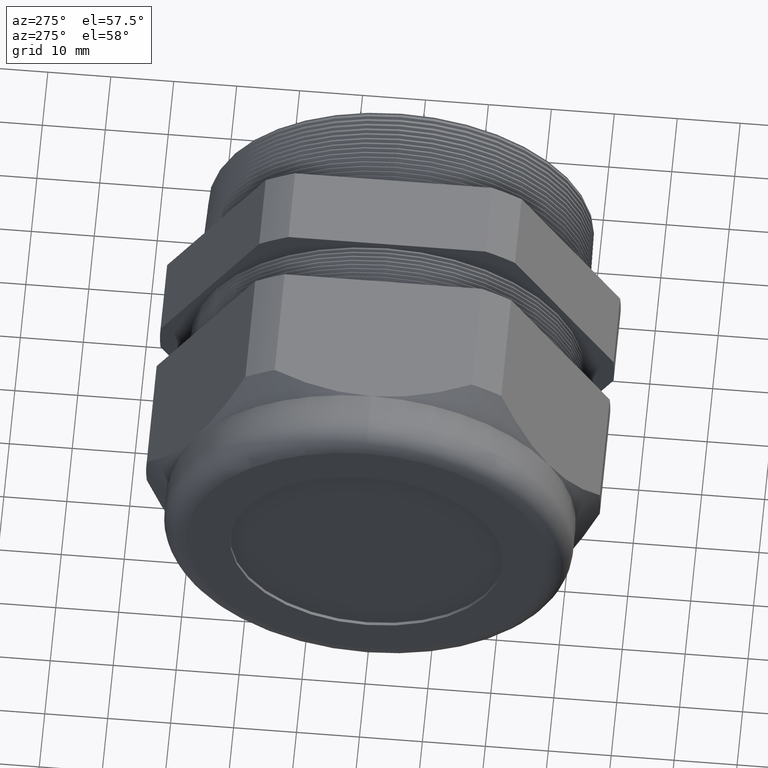
[diagram: clean part render]
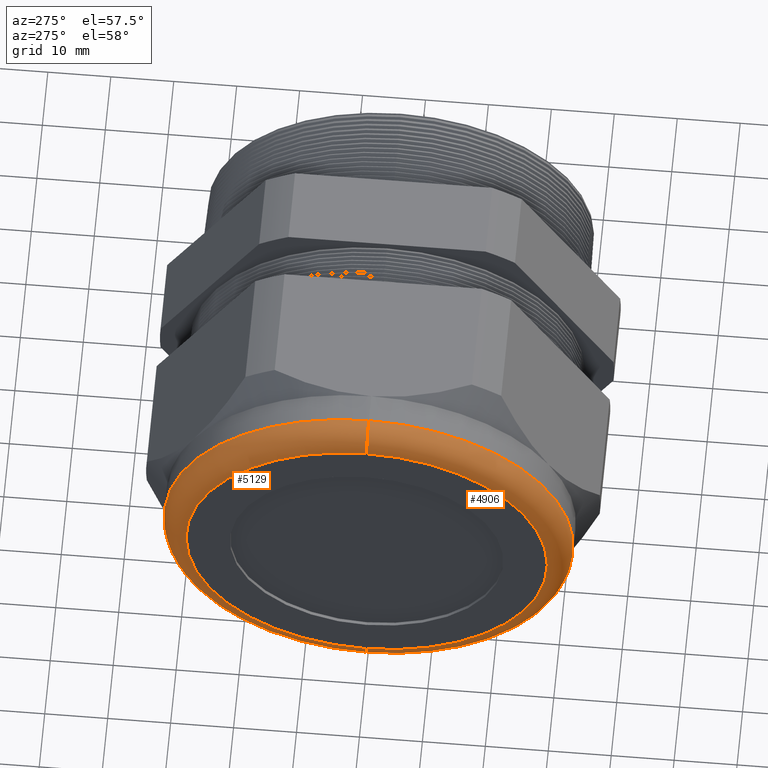
[diagram: same view with one multi-face feature highlighted, each face labeled with its STEP entity id]
A machine part, auxiliary view. The highlighted faces form ONE feature: a constant-radius fillet chain: 2 tangent blend faces with common blend radius 3.81 mm. The faces share edges in the B-rep.
Their STEP definitions:
[1] entity #4906 (Torus):
#95 = EDGE_CURVE ( 'NONE', #5113, #5101, #569, .T. ) ;
#565 = DIRECTION ( 'NONE',  ( 0.0000000000000000000, 0.0000000000000000000, 1.000000000000000000 ) ) ;
#566 = DIRECTION ( 'NONE',  ( -1.000000000000000000, 0.0000000000000000000, 0.0000000000000000000 ) ) ;
#567 = CARTESIAN_POINT ( 'NONE',  ( -2.239999999999999800, 0.0000000000000000000, 0.0000000000000000000 ) ) ;
#568 = AXIS2_PLACEMENT_3D ( 'NONE', #567, #566, #565 ) ;
#569 = CIRCLE ( 'NONE', #568, 1.129999999999999900 ) ;
#2875 = DIRECTION ( 'NONE',  ( 0.0000000000000000000, 0.0000000000000000000, 1.000000000000000000 ) ) ;
#2876 = DIRECTION ( 'NONE',  ( 1.000000000000000000, 0.0000000000000000000, 0.0000000000000000000 ) ) ;
#2877 = CARTESIAN_POINT ( 'NONE',  ( -2.089999999999999400, 0.0000000000000000000, 0.0000000000000000000 ) ) ;
#2878 = AXIS2_PLACEMENT_3D ( 'NONE', #2877, #2876, #2875 ) ;
#2879 = CIRCLE ( 'NONE', #2878, 1.280000000000000000 ) ;
#3078 = DIRECTION ( 'NONE',  ( 0.0000000000000000000, 0.0000000000000000000, 1.000000000000000000 ) ) ;
#3079 = DIRECTION ( 'NONE',  ( -1.000000000000000000, 0.0000000000000000000, 0.0000000000000000000 ) ) ;
#3080 = CARTESIAN_POINT ( 'NONE',  ( -2.089999999999999400, 0.0000000000000000000, 0.0000000000000000000 ) ) ;
#3081 = AXIS2_PLACEMENT_3D ( 'NONE', #3080, #3079, #3078 ) ;
#3082 = TOROIDAL_SURFACE ( 'NONE', #3081, 1.129999999999999900, 0.1499999999999999900 ) ;
#3083 = FACE_OUTER_BOUND ( 'NONE', #4905, .T. ) ;
#3372 = CARTESIAN_POINT ( 'NONE',  ( -2.239999999999999800, 0.0000000000000000000, 1.129999999999999900 ) ) ;
#3390 = CARTESIAN_POINT ( 'NONE',  ( -2.089999999999999400, 0.0000000000000000000, -1.280000000000000000 ) ) ;
#3391 = CARTESIAN_POINT ( 'NONE',  ( -2.089999999999999400, 1.567547902908612300E-016, 1.280000000000000000 ) ) ;
#3398 = CARTESIAN_POINT ( 'NONE',  ( -2.239999999999999800, 1.475699392972560400E-016, -1.129999999999999900 ) ) ;
#3404 = DIRECTION ( 'NONE',  ( 0.0000000000000000000, -1.224646799147352500E-016, 1.000000000000000000 ) ) ;
#3405 = DIRECTION ( 'NONE',  ( 0.0000000000000000000, 1.000000000000000000, 1.224646799147353200E-016 ) ) ;
#3406 = CARTESIAN_POINT ( 'NONE',  ( -2.089999999999999400, 1.383850883036509000E-016, -1.129999999999999900 ) ) ;
#3407 = AXIS2_PLACEMENT_3D ( 'NONE', #3406, #3405, #3404 ) ;
#3408 = CIRCLE ( 'NONE', #3407, 0.1500000000000000500 ) ;
#3487 = DIRECTION ( 'NONE',  ( 0.0000000000000000000, 0.0000000000000000000, -1.000000000000000000 ) ) ;
#3488 = DIRECTION ( 'NONE',  ( 0.0000000000000000000, -1.000000000000000000, 0.0000000000000000000 ) ) ;
#3489 = CARTESIAN_POINT ( 'NONE',  ( -2.089999999999999400, 0.0000000000000000000, 1.129999999999999900 ) ) ;
#3490 = AXIS2_PLACEMENT_3D ( 'NONE', #3489, #3488, #3487 ) ;
#3491 = CIRCLE ( 'NONE', #3490, 0.1500000000000000500 ) ;
#4793 = EDGE_CURVE ( 'NONE', #5115, #5116, #2879, .T. ) ;
#4884 = ORIENTED_EDGE ( 'NONE', *, *, #95, .F. ) ;
#4885 = ORIENTED_EDGE ( 'NONE', *, *, #4793, .F. ) ;
#4886 = ORIENTED_EDGE ( 'NONE', *, *, #5167, .T. ) ;
#4889 = ORIENTED_EDGE ( 'NONE', *, *, #5110, .F. ) ;
#4905 = EDGE_LOOP ( 'NONE', ( #4889, #4885, #4886, #4884 ) ) ;
#4906 = ADVANCED_FACE ( 'NONE', ( #3083 ), #3082, .T. ) ;
#5101 = VERTEX_POINT ( 'NONE', #3372 ) ;
#5110 = EDGE_CURVE ( 'NONE', #5116, #5113, #3408, .T. ) ;
#5113 = VERTEX_POINT ( 'NONE', #3398 ) ;
#5115 = VERTEX_POINT ( 'NONE', #3391 ) ;
#5116 = VERTEX_POINT ( 'NONE', #3390 ) ;
#5167 = EDGE_CURVE ( 'NONE', #5115, #5101, #3491, .T. ) ;
[2] entity #5129 (Torus):
#3372 = CARTESIAN_POINT ( 'NONE',  ( -2.239999999999999800, 0.0000000000000000000, 1.129999999999999900 ) ) ;
#3390 = CARTESIAN_POINT ( 'NONE',  ( -2.089999999999999400, 0.0000000000000000000, -1.280000000000000000 ) ) ;
#3391 = CARTESIAN_POINT ( 'NONE',  ( -2.089999999999999400, 1.567547902908612300E-016, 1.280000000000000000 ) ) ;
#3398 = CARTESIAN_POINT ( 'NONE',  ( -2.239999999999999800, 1.475699392972560400E-016, -1.129999999999999900 ) ) ;
#3399 = DIRECTION ( 'NONE',  ( 0.0000000000000000000, 0.0000000000000000000, 1.000000000000000000 ) ) ;
#3400 = DIRECTION ( 'NONE',  ( 1.000000000000000000, 0.0000000000000000000, 0.0000000000000000000 ) ) ;
#3401 = CARTESIAN_POINT ( 'NONE',  ( -2.089999999999999400, 0.0000000000000000000, 0.0000000000000000000 ) ) ;
#3402 = AXIS2_PLACEMENT_3D ( 'NONE', #3401, #3400, #3399 ) ;
#3403 = CIRCLE ( 'NONE', #3402, 1.280000000000000000 ) ;
#3404 = DIRECTION ( 'NONE',  ( 0.0000000000000000000, -1.224646799147352500E-016, 1.000000000000000000 ) ) ;
#3405 = DIRECTION ( 'NONE',  ( 0.0000000000000000000, 1.000000000000000000, 1.224646799147353200E-016 ) ) ;
#3406 = CARTESIAN_POINT ( 'NONE',  ( -2.089999999999999400, 1.383850883036509000E-016, -1.129999999999999900 ) ) ;
#3407 = AXIS2_PLACEMENT_3D ( 'NONE', #3406, #3405, #3404 ) ;
#3408 = CIRCLE ( 'NONE', #3407, 0.1500000000000000500 ) ;
#3409 = DIRECTION ( 'NONE',  ( 0.0000000000000000000, 0.0000000000000000000, 1.000000000000000000 ) ) ;
#3410 = DIRECTION ( 'NONE',  ( -1.000000000000000000, 0.0000000000000000000, 0.0000000000000000000 ) ) ;
#3411 = CARTESIAN_POINT ( 'NONE',  ( -2.239999999999999800, 0.0000000000000000000, 0.0000000000000000000 ) ) ;
#3412 = AXIS2_PLACEMENT_3D ( 'NONE', #3411, #3410, #3409 ) ;
#3413 = CIRCLE ( 'NONE', #3412, 1.129999999999999900 ) ;
#3433 = DIRECTION ( 'NONE',  ( 0.0000000000000000000, 0.0000000000000000000, 1.000000000000000000 ) ) ;
#3434 = DIRECTION ( 'NONE',  ( -1.000000000000000000, 0.0000000000000000000, 0.0000000000000000000 ) ) ;
#3435 = CARTESIAN_POINT ( 'NONE',  ( -2.089999999999999400, 0.0000000000000000000, 0.0000000000000000000 ) ) ;
#3436 = AXIS2_PLACEMENT_3D ( 'NONE', #3435, #3434, #3433 ) ;
#3437 = TOROIDAL_SURFACE ( 'NONE', #3436, 1.129999999999999900, 0.1499999999999999900 ) ;
#3438 = FACE_OUTER_BOUND ( 'NONE', #5123, .T. ) ;
#3487 = DIRECTION ( 'NONE',  ( 0.0000000000000000000, 0.0000000000000000000, -1.000000000000000000 ) ) ;
#3488 = DIRECTION ( 'NONE',  ( 0.0000000000000000000, -1.000000000000000000, 0.0000000000000000000 ) ) ;
#3489 = CARTESIAN_POINT ( 'NONE',  ( -2.089999999999999400, 0.0000000000000000000, 1.129999999999999900 ) ) ;
#3490 = AXIS2_PLACEMENT_3D ( 'NONE', #3489, #3488, #3487 ) ;
#3491 = CIRCLE ( 'NONE', #3490, 0.1500000000000000500 ) ;
#5101 = VERTEX_POINT ( 'NONE', #3372 ) ;
#5107 = EDGE_CURVE ( 'NONE', #5101, #5113, #3413, .T. ) ;
#5109 = ORIENTED_EDGE ( 'NONE', *, *, #5107, .F. ) ;
#5110 = EDGE_CURVE ( 'NONE', #5116, #5113, #3408, .T. ) ;
#5111 = EDGE_CURVE ( 'NONE', #5116, #5115, #3403, .T. ) ;
#5112 = ORIENTED_EDGE ( 'NONE', *, *, #5110, .T. ) ;
#5113 = VERTEX_POINT ( 'NONE', #3398 ) ;
#5115 = VERTEX_POINT ( 'NONE', #3391 ) ;
#5116 = VERTEX_POINT ( 'NONE', #3390 ) ;
#5117 = ORIENTED_EDGE ( 'NONE', *, *, #5111, .F. ) ;
#5123 = EDGE_LOOP ( 'NONE', ( #5117, #5112, #5109, #5159 ) ) ;
#5129 = ADVANCED_FACE ( 'NONE', ( #3438 ), #3437, .T. ) ;
#5159 = ORIENTED_EDGE ( 'NONE', *, *, #5167, .F. ) ;
#5167 = EDGE_CURVE ( 'NONE', #5115, #5101, #3491, .T. ) ;